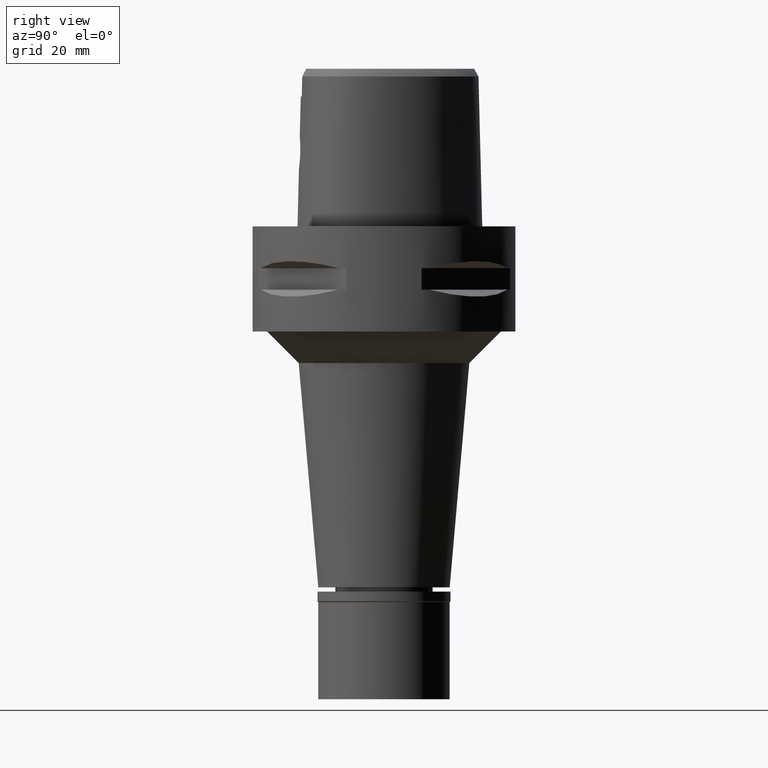
[diagram: clean part render]
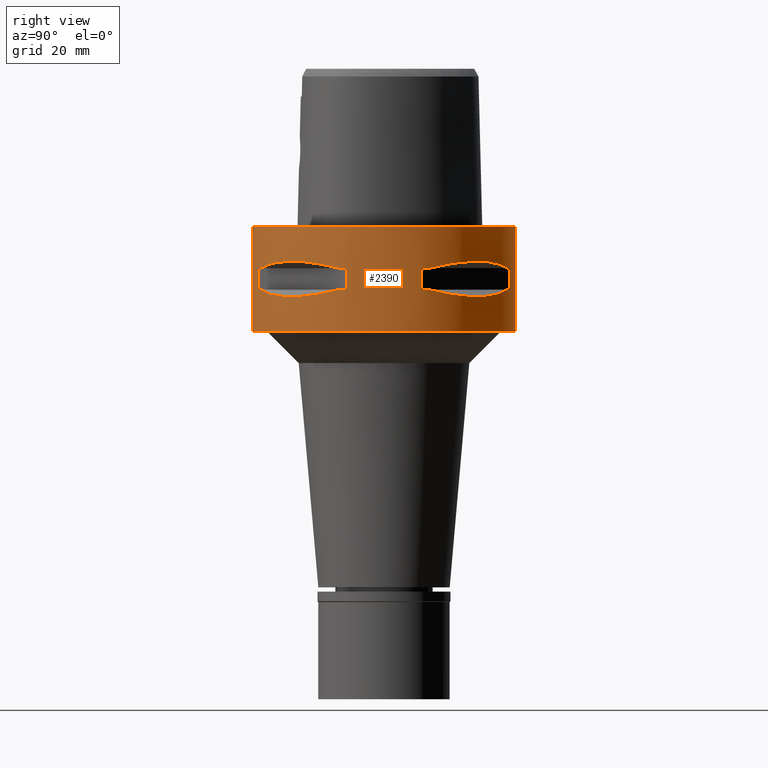
[diagram: same view with one face highlighted and labeled with its STEP entity id]
A machine part, right view. The second image highlights one B-rep face of the part: STEP entity #2390.
In plain terms, the highlighted cylindrical surface (partial cylindrical patch) has radius 25 mm, axis along (0, 0, -1).
Its self-contained STEP definition (entity closure, byte-faithful):
#15 = CARTESIAN_POINT ( 'NONE',  ( 20.88268233906207172, -13.74471461761599400, -13.08031795579753087 ) ) ;
#35 = CARTESIAN_POINT ( 'NONE',  ( 23.45715880140000209, 8.646484890756999775, -12.05000000000000071 ) ) ;
#38 = CARTESIAN_POINT ( 'NONE',  ( 13.53433973752400554, -21.01958685664054372, -13.05032380590162333 ) ) ;
#52 = DIRECTION ( 'NONE',  ( 0.0000000000000000000, 0.0000000000000000000, 1.000000000000000000 ) ) ;
#64 = CIRCLE ( 'NONE', #3499, 24.99999999999999645 ) ;
#67 = CARTESIAN_POINT ( 'NONE',  ( 9.515641234297431694, -23.13678124605150188, -12.27403800212630536 ) ) ;
#69 = CARTESIAN_POINT ( 'NONE',  ( 23.95277699797999915, 7.159921374230999724, -12.05000000000000071 ) ) ;
#72 = DIRECTION ( 'NONE',  ( 0.0000000000000000000, 0.0000000000000000000, -1.000000000000000000 ) ) ;
#81 = ORIENTED_EDGE ( 'NONE', *, *, #4947, .F. ) ;
#107 = CARTESIAN_POINT ( 'NONE',  ( 23.95277699797999915, 7.159921374230999724, -7.950000000000000178 ) ) ;
#120 = LINE ( 'NONE', #150, #617 ) ;
#124 = ORIENTED_EDGE ( 'NONE', *, *, #666, .F. ) ;
#143 = CARTESIAN_POINT ( 'NONE',  ( 7.159921374235000080, -23.95277699797999915, -7.950000000000000178 ) ) ;
#150 = CARTESIAN_POINT ( 'NONE',  ( 7.159921374230999724, 23.95277699797999915, -12.05000000000000071 ) ) ;
#206 = DIRECTION ( 'NONE',  ( 0.2863968549694120291, -0.9581110799190402094, 0.0000000000000000000 ) ) ;
#207 = CARTESIAN_POINT ( 'NONE',  ( 22.58788056560981516, 10.78455809748034788, -12.56798337783676267 ) ) ;
#227 = EDGE_LOOP ( 'NONE', ( #973, #2279, #4503, #81 ) ) ;
#236 = CARTESIAN_POINT ( 'NONE',  ( 21.20561591939435786, 13.24197703503935486, -13.00691327926270446 ) ) ;
#269 = CARTESIAN_POINT ( 'NONE',  ( 20.06074199769976829, -15.02698525043415145, -6.733118915137212390 ) ) ;
#285 = CARTESIAN_POINT ( 'NONE',  ( 21.82791133047632215, 12.20403021319857828, -12.83722430139150994 ) ) ;
#317 = VECTOR ( 'NONE', #2649, 1000.000000000000000 ) ;
#331 = ORIENTED_EDGE ( 'NONE', *, *, #4211, .T. ) ;
#335 = CARTESIAN_POINT ( 'NONE',  ( 8.646484890751999330, 23.45715880140000209, -12.05000000000000071 ) ) ;
#357 = CARTESIAN_POINT ( 'NONE',  ( 0.0000000000000000000, 1.275959500031999927E-14, 4.190000000000000391 ) ) ;
#363 = CARTESIAN_POINT ( 'NONE',  ( 16.43106916202457057, -18.92421359264944769, -13.37747608848233760 ) ) ;
#394 = LINE ( 'NONE', #4631, #317 ) ;
#412 = CARTESIAN_POINT ( 'NONE',  ( 10.78455809745186755, -22.58788056562029922, -12.56798337782941566 ) ) ;
#453 = CIRCLE ( 'NONE', #1577, 24.99999999999999645 ) ;
#478 = AXIS2_PLACEMENT_3D ( 'NONE', #1681, #4707, #2777 ) ;
#479 = EDGE_CURVE ( 'NONE', #2343, #3742, #697, .T. ) ;
#511 = VERTEX_POINT ( 'NONE', #3043 ) ;
#522 = CARTESIAN_POINT ( 'NONE',  ( 15.02698525050126044, 20.06074199764951871, -6.733118915116992120 ) ) ;
#554 = LINE ( 'NONE', #107, #1666 ) ;
#603 = CIRCLE ( 'NONE', #4135, 25.00000000000001066 ) ;
#608 = CARTESIAN_POINT ( 'NONE',  ( 21.01958685664017068, 13.53433973752500918, -13.05032380590188446 ) ) ;
#617 = VECTOR ( 'NONE', #1684, 1000.000000000000000 ) ;
#638 = CARTESIAN_POINT ( 'NONE',  ( 13.90573822668135406, 20.77616787493428774, -13.10257122103294058 ) ) ;
#648 = CARTESIAN_POINT ( 'NONE',  ( 8.646484890751999330, -23.45715880140000209, -7.949999999998999201 ) ) ;
#666 = EDGE_CURVE ( 'NONE', #2653, #2174, #120, .T. ) ;
#683 = CIRCLE ( 'NONE', #3889, 24.99999999999999645 ) ;
#687 = DIRECTION ( 'NONE',  ( 0.9382863520558295534, -0.3458593956303108730, 0.0000000000000000000 ) ) ;
#691 = CIRCLE ( 'NONE', #4542, 25.00000000000001066 ) ;
#697 = CIRCLE ( 'NONE', #2762, 25.00000000000000000 ) ;
#711 = FACE_BOUND ( 'NONE', #2868, .T. ) ;
#735 = CARTESIAN_POINT ( 'NONE',  ( 15.06560254765663132, -20.02826730455345583, -13.27075471794622885 ) ) ;
#743 = ORIENTED_EDGE ( 'NONE', *, *, #4894, .T. ) ;
#761 = CARTESIAN_POINT ( 'NONE',  ( 19.18226349639588690, -16.07509500018327131, -13.33749867752016449 ) ) ;
#817 = DIRECTION ( 'NONE',  ( 0.0000000000000000000, 0.0000000000000000000, 1.000000000000000000 ) ) ;
#864 = CARTESIAN_POINT ( 'NONE',  ( 0.0000000000000000000, 1.275959500031999927E-14, -12.05000000000000071 ) ) ;
#918 = CARTESIAN_POINT ( 'NONE',  ( 8.646484890751999330, 23.45715880140000209, -7.949999999998999201 ) ) ;
#924 = EDGE_LOOP ( 'NONE', ( #331, #124, #3426, #1458, #4787, #2404, #2111, #3255 ) ) ;
#973 = ORIENTED_EDGE ( 'NONE', *, *, #479, .T. ) ;
#981 = CARTESIAN_POINT ( 'NONE',  ( 21.41803043591995959, 12.89853354823032738, -12.95342092614324869 ) ) ;
#1001 = VERTEX_POINT ( 'NONE', #4134 ) ;
#1039 = CARTESIAN_POINT ( 'NONE',  ( 13.60713573003037880, 20.97251445226597966, -13.06082541678103404 ) ) ;
#1040 = CARTESIAN_POINT ( 'NONE',  ( 23.95277699797999915, -7.159921374230999724, -12.05000000000000071 ) ) ;
#1048 = CARTESIAN_POINT ( 'NONE',  ( 23.45715880140000209, -8.646484890751999330, -7.949999999998999201 ) ) ;
#1051 = ORIENTED_EDGE ( 'NONE', *, *, #3708, .T. ) ;
#1072 = CARTESIAN_POINT ( 'NONE',  ( 0.0000000000000000000, 25.00000000000000000, 0.0000000000000000000 ) ) ;
#1086 = EDGE_CURVE ( 'NONE', #2666, #3936, #4172, .T. ) ;
#1112 = DIRECTION ( 'NONE',  ( 0.9581110799190402094, -0.2863968549694120291, 0.0000000000000000000 ) ) ;
#1114 = CYLINDRICAL_SURFACE ( 'NONE', #3753, 25.00000000000000000 ) ;
#1122 = CARTESIAN_POINT ( 'NONE',  ( 20.97251445226583755, -13.60713573003076071, -13.06082541678112641 ) ) ;
#1126 = CARTESIAN_POINT ( 'NONE',  ( 23.45715880140000209, 8.646484890751999330, -7.949999999998999201 ) ) ;
#1172 = CARTESIAN_POINT ( 'NONE',  ( 13.48572973711064193, -21.05082155772163688, -13.04323036965292637 ) ) ;
#1180 = AXIS2_PLACEMENT_3D ( 'NONE', #4410, #2902, #687 ) ;
#1181 = EDGE_CURVE ( 'NONE', #511, #3771, #2145, .T. ) ;
#1182 = EDGE_CURVE ( 'NONE', #2206, #3771, #2671, .T. ) ;
#1203 = CARTESIAN_POINT ( 'NONE',  ( 0.0000000000000000000, 1.275959500031999927E-14, -7.950000000000000178 ) ) ;
#1281 = VERTEX_POINT ( 'NONE', #3282 ) ;
#1287 = B_SPLINE_CURVE_WITH_KNOTS ( 'NONE', 3,
 ( #2835, #1377, #1661, #2391, #3960, #2134, #522, #4343, #2863, #918 ),
 .UNSPECIFIED., .F., .F.,
 ( 4, 2, 2, 2, 4 ),
 ( 0.0000000000000000000, 0.2500000000000000000, 0.5000000000000000000, 0.7500000000000000000, 1.000000000000000000 ),
 .UNSPECIFIED. ) ;
#1377 = CARTESIAN_POINT ( 'NONE',  ( 22.82438450745431524, 10.36314631860615876, -7.507504930525397135 ) ) ;
#1412 = VECTOR ( 'NONE', #4904, 1000.000000000000000 ) ;
#1428 = CARTESIAN_POINT ( 'NONE',  ( 22.82437128824116712, -10.36318218117755841, -7.507495686413086844 ) ) ;
#1446 = CARTESIAN_POINT ( 'NONE',  ( 10.38516041958474645, 22.81626994451295332, -12.49816953211793802 ) ) ;
#1447 = DIRECTION ( 'NONE',  ( 0.0000000000000000000, 0.0000000000000000000, 1.000000000000000000 ) ) ;
#1458 = ORIENTED_EDGE ( 'NONE', *, *, #4590, .F. ) ;
#1492 = EDGE_CURVE ( 'NONE', #1281, #2958, #554, .T. ) ;
#1551 = CARTESIAN_POINT ( 'NONE',  ( 20.77616787493668937, -13.90573822667970916, -13.10257122103325145 ) ) ;
#1569 = DIRECTION ( 'NONE',  ( 0.0000000000000000000, -1.000000000000000000, 0.0000000000000000000 ) ) ;
#1577 = AXIS2_PLACEMENT_3D ( 'NONE', #4150, #4551, #1112 ) ;
#1661 = CARTESIAN_POINT ( 'NONE',  ( 22.00754773658079344, 11.99631184311074428, -7.175632472892017333 ) ) ;
#1666 = VECTOR ( 'NONE', #3104, 1000.000000000000000 ) ;
#1681 = CARTESIAN_POINT ( 'NONE',  ( 0.0000000000000000000, 1.275959500031999927E-14, -12.05000000000000071 ) ) ;
#1684 = DIRECTION ( 'NONE',  ( 0.0000000000000000000, 0.0000000000000000000, 1.000000000000000000 ) ) ;
#1775 = CARTESIAN_POINT ( 'NONE',  ( 0.0000000000000000000, 1.275959500031999927E-14, -7.950000000000000178 ) ) ;
#1799 = CARTESIAN_POINT ( 'NONE',  ( 21.05082155772089436, 13.48572973711263323, -13.04323036965343618 ) ) ;
#1806 = LINE ( 'NONE', #1072, #1412 ) ;
#1823 = CARTESIAN_POINT ( 'NONE',  ( 12.03062603423778754, 21.99328990739221013, -12.83394786307672675 ) ) ;
#1926 = CARTESIAN_POINT ( 'NONE',  ( 20.11654071402723432, -14.85488513038430192, -13.22076716108491290 ) ) ;
#1931 = DIRECTION ( 'NONE',  ( 0.0000000000000000000, 1.000000000000000000, 0.0000000000000000000 ) ) ;
#1941 = CARTESIAN_POINT ( 'NONE',  ( 8.646484890751999330, 23.45715880140000209, -12.05000000000000071 ) ) ;
#2016 = EDGE_CURVE ( 'NONE', #1281, #4282, #64, .T. ) ;
#2111 = ORIENTED_EDGE ( 'NONE', *, *, #2016, .T. ) ;
#2123 = DIRECTION ( 'NONE',  ( 0.3458593956303108730, -0.9382863520558295534, 0.0000000000000000000 ) ) ;
#2134 = CARTESIAN_POINT ( 'NONE',  ( 16.42437865151178045, 18.93096040781560063, -6.622496303226938608 ) ) ;
#2136 = VERTEX_POINT ( 'NONE', #143 ) ;
#2144 = CARTESIAN_POINT ( 'NONE',  ( 21.00321793043583796, 13.55971422200765630, -13.05400030967367897 ) ) ;
#2145 = LINE ( 'NONE', #1040, #3571 ) ;
#2154 = CARTESIAN_POINT ( 'NONE',  ( 11.99631184318432275, -22.00754773654066199, -7.175632472871786405 ) ) ;
#2169 = CARTESIAN_POINT ( 'NONE',  ( 13.74471461761685198, 20.88268233906084248, -13.08031795579737455 ) ) ;
#2174 = VERTEX_POINT ( 'NONE', #3205 ) ;
#2206 = VERTEX_POINT ( 'NONE', #2430 ) ;
#2265 = CARTESIAN_POINT ( 'NONE',  ( 23.45715880140000209, -8.646484890751999330, -12.05000000000000071 ) ) ;
#2279 = ORIENTED_EDGE ( 'NONE', *, *, #4502, .T. ) ;
#2289 = CARTESIAN_POINT ( 'NONE',  ( 20.95817024473895174, -13.62920640916654591, -13.06397973560678061 ) ) ;
#2301 = VERTEX_POINT ( 'NONE', #3905 ) ;
#2341 = DIRECTION ( 'NONE',  ( 0.3458593956303108730, 0.9382863520558295534, 0.0000000000000000000 ) ) ;
#2343 = VERTEX_POINT ( 'NONE', #3800 ) ;
#2382 = DIRECTION ( 'NONE',  ( 0.0000000000000000000, 0.0000000000000000000, -1.000000000000000000 ) ) ;
#2390 = ADVANCED_FACE ( 'NONE', ( #3434, #711, #2983 ), #1114, .T. ) ;
#2391 = CARTESIAN_POINT ( 'NONE',  ( 20.06077645874710313, 15.02693924547574866, -6.733132781305681824 ) ) ;
#2404 = ORIENTED_EDGE ( 'NONE', *, *, #1492, .F. ) ;
#2430 = CARTESIAN_POINT ( 'NONE',  ( 23.45715880140000209, -8.646484890751999330, -7.949999999998999201 ) ) ;
#2440 = CARTESIAN_POINT ( 'NONE',  ( 23.45715880140000209, -8.646484890751999330, -12.05000000000000071 ) ) ;
#2451 = VERTEX_POINT ( 'NONE', #335 ) ;
#2474 = ORIENTED_EDGE ( 'NONE', *, *, #1182, .T. ) ;
#2510 = CARTESIAN_POINT ( 'NONE',  ( 16.42437865147233111, -18.93096040785503220, -6.622505547239580181 ) ) ;
#2511 = EDGE_CURVE ( 'NONE', #1001, #2301, #4398, .T. ) ;
#2549 = CARTESIAN_POINT ( 'NONE',  ( 7.159921374230999724, -23.95277699797999915, -12.05000000000000071 ) ) ;
#2573 = ORIENTED_EDGE ( 'NONE', *, *, #4810, .T. ) ;
#2617 = AXIS2_PLACEMENT_3D ( 'NONE', #864, #2382, #4284 ) ;
#2647 = CARTESIAN_POINT ( 'NONE',  ( 13.55971422200820520, -21.00321793043535479, -13.05400030967370206 ) ) ;
#2649 = DIRECTION ( 'NONE',  ( 0.0000000000000000000, 0.0000000000000000000, -1.000000000000000000 ) ) ;
#2653 = VERTEX_POINT ( 'NONE', #3247 ) ;
#2666 = VERTEX_POINT ( 'NONE', #2915 ) ;
#2671 = CIRCLE ( 'NONE', #1180, 25.00000000000001066 ) ;
#2673 = EDGE_CURVE ( 'NONE', #2895, #2206, #4047, .T. ) ;
#2711 = CARTESIAN_POINT ( 'NONE',  ( 0.0000000000000000000, 1.275959500031999927E-14, -7.950000000000000178 ) ) ;
#2742 = CARTESIAN_POINT ( 'NONE',  ( 0.0000000000000000000, 1.275959500031999927E-14, -20.00000000000000000 ) ) ;
#2762 = AXIS2_PLACEMENT_3D ( 'NONE', #4635, #72, #1931 ) ;
#2775 = CIRCLE ( 'NONE', #478, 24.99999999999999645 ) ;
#2777 = DIRECTION ( 'NONE',  ( 0.2863968549694120291, 0.9581110799190402094, 0.0000000000000000000 ) ) ;
#2835 = CARTESIAN_POINT ( 'NONE',  ( 23.45715880140000209, 8.646484890751999330, -7.949999999998999201 ) ) ;
#2861 = EDGE_CURVE ( 'NONE', #2136, #4570, #394, .T. ) ;
#2863 = CARTESIAN_POINT ( 'NONE',  ( 10.36318218122983481, 22.82437128822192207, -7.507495686399606960 ) ) ;
#2868 = EDGE_LOOP ( 'NONE', ( #2474, #3721, #2573, #4162, #743, #3731, #1051, #4432 ) ) ;
#2887 = CARTESIAN_POINT ( 'NONE',  ( 18.93096040785499667, -16.42437865147237730, -6.622496303240421156 ) ) ;
#2895 = VERTEX_POINT ( 'NONE', #3784 ) ;
#2902 = DIRECTION ( 'NONE',  ( 0.0000000000000000000, 0.0000000000000000000, 1.000000000000000000 ) ) ;
#2915 = CARTESIAN_POINT ( 'NONE',  ( 8.646484890756999775, -23.45715880140000209, -12.05000000000000071 ) ) ;
#2933 = CARTESIAN_POINT ( 'NONE',  ( 16.07509500019029502, 19.18226349638565509, -13.33749867751885532 ) ) ;
#2958 = VERTEX_POINT ( 'NONE', #69 ) ;
#2960 = CARTESIAN_POINT ( 'NONE',  ( 0.0000000000000000000, -25.00000000000000000, 0.0000000000000000000 ) ) ;
#2983 = FACE_BOUND ( 'NONE', #924, .T. ) ;
#3012 = CARTESIAN_POINT ( 'NONE',  ( 12.20403021317722292, -21.82791133048418786, -12.83722430138600323 ) ) ;
#3022 = B_SPLINE_CURVE_WITH_KNOTS ( 'NONE', 3,
 ( #3643, #3723, #207, #285, #981, #236, #4052, #1799, #608, #2144, #4849, #3333, #3281, #2933, #3673, #4078, #638, #2169, #3698, #4486, #1039, #1823, #1446, #1941 ),
 .UNSPECIFIED., .F., .F.,
 ( 4, 1, 1, 1, 1, 1, 2, 2, 2, 1, 1, 1, 1, 1, 2, 2, 4 ),
 ( 0.0000000000000000000, 0.1249999999999982236, 0.1874999999999974465, 0.2187499999999970302, 0.2343749999999969469, 0.2421874999999968081, 0.2460937499999968359, 0.2499999999999968914, 0.4999999999999973355, 0.6249999999999973355, 0.6874999999999976685, 0.7187499999999978906, 0.7343749999999980016, 0.7421874999999980016, 0.7460937499999978906, 0.7499999999999978906, 1.000000000000000000 ),
 .UNSPECIFIED. ) ;
#3043 = CARTESIAN_POINT ( 'NONE',  ( 23.95277699797999915, -7.159921374235000080, -12.05000000000000071 ) ) ;
#3059 = CARTESIAN_POINT ( 'NONE',  ( 21.99328990740119139, -12.03062603421341770, -12.83394786307044022 ) ) ;
#3095 = EDGE_CURVE ( 'NONE', #2653, #2451, #2775, .T. ) ;
#3104 = DIRECTION ( 'NONE',  ( 0.0000000000000000000, 0.0000000000000000000, -1.000000000000000000 ) ) ;
#3205 = CARTESIAN_POINT ( 'NONE',  ( 7.159921374230999724, 23.95277699797999915, -7.950000000000000178 ) ) ;
#3215 = EDGE_CURVE ( 'NONE', #3614, #2958, #4000, .T. ) ;
#3247 = CARTESIAN_POINT ( 'NONE',  ( 7.159921374235000080, 23.95277699797999915, -12.05000000000000071 ) ) ;
#3255 = ORIENTED_EDGE ( 'NONE', *, *, #3840, .T. ) ;
#3280 = DIRECTION ( 'NONE',  ( 0.0000000000000000000, 0.0000000000000000000, 1.000000000000000000 ) ) ;
#3281 = CARTESIAN_POINT ( 'NONE',  ( 17.05439749817592343, 18.30096971347850499, -13.37751056790020598 ) ) ;
#3282 = CARTESIAN_POINT ( 'NONE',  ( 23.95277699797999915, 7.159921374235000080, -7.950000000000000178 ) ) ;
#3319 = CARTESIAN_POINT ( 'NONE',  ( 10.36314631865839964, -22.82438450743505598, -7.507504930511911923 ) ) ;
#3333 = CARTESIAN_POINT ( 'NONE',  ( 18.92421359264142211, 16.43106916203626611, -13.37747608848383329 ) ) ;
#3416 = CARTESIAN_POINT ( 'NONE',  ( 8.646484890756999775, -23.45715880140000209, -12.05000000000000071 ) ) ;
#3426 = ORIENTED_EDGE ( 'NONE', *, *, #3095, .T. ) ;
#3434 = FACE_OUTER_BOUND ( 'NONE', #227, .T. ) ;
#3499 = AXIS2_PLACEMENT_3D ( 'NONE', #2711, #52, #3863 ) ;
#3571 = VECTOR ( 'NONE', #1447, 1000.000000000000000 ) ;
#3614 = VERTEX_POINT ( 'NONE', #35 ) ;
#3643 = CARTESIAN_POINT ( 'NONE',  ( 23.45715880140000209, 8.646484890756999775, -12.05000000000000071 ) ) ;
#3673 = CARTESIAN_POINT ( 'NONE',  ( 14.85488513038957592, 20.11654071401955335, -13.22076716108393413 ) ) ;
#3698 = CARTESIAN_POINT ( 'NONE',  ( 13.67544437571146609, 20.92801700160250533, -13.07054629644086674 ) ) ;
#3708 = EDGE_CURVE ( 'NONE', #2136, #2895, #683, .T. ) ;
#3709 = CARTESIAN_POINT ( 'NONE',  ( 15.02693924554282034, -20.06077645869683579, -6.733132781285451784 ) ) ;
#3721 = ORIENTED_EDGE ( 'NONE', *, *, #1181, .F. ) ;
#3723 = CARTESIAN_POINT ( 'NONE',  ( 23.13678124604550845, 9.515641234313701347, -12.27403800213050111 ) ) ;
#3731 = ORIENTED_EDGE ( 'NONE', *, *, #2861, .F. ) ;
#3742 = VERTEX_POINT ( 'NONE', #4773 ) ;
#3753 = AXIS2_PLACEMENT_3D ( 'NONE', #357, #4153, #4555 ) ;
#3771 = VERTEX_POINT ( 'NONE', #4690 ) ;
#3784 = CARTESIAN_POINT ( 'NONE',  ( 8.646484890751999330, -23.45715880140000209, -7.949999999998999201 ) ) ;
#3786 = CARTESIAN_POINT ( 'NONE',  ( 8.646484890751999330, 23.45715880140000209, -7.949999999998999201 ) ) ;
#3800 = CARTESIAN_POINT ( 'NONE',  ( 0.0000000000000000000, 25.00000000000000000, 0.0000000000000000000 ) ) ;
#3832 = CARTESIAN_POINT ( 'NONE',  ( 22.81626994452193458, -10.38516041956038727, -12.49816953211166037 ) ) ;
#3840 = EDGE_CURVE ( 'NONE', #4282, #4073, #1287, .T. ) ;
#3853 = CARTESIAN_POINT ( 'NONE',  ( 18.30096971348435630, -17.05439749817190176, -13.37751056790094850 ) ) ;
#3863 = DIRECTION ( 'NONE',  ( 0.9581110799190402094, 0.2863968549694120291, 0.0000000000000000000 ) ) ;
#3889 = AXIS2_PLACEMENT_3D ( 'NONE', #1775, #3280, #206 ) ;
#3905 = CARTESIAN_POINT ( 'NONE',  ( 0.0000000000000000000, 25.00000000000000000, -20.00000000000000000 ) ) ;
#3915 = AXIS2_PLACEMENT_3D ( 'NONE', #2742, #4274, #1569 ) ;
#3936 = VERTEX_POINT ( 'NONE', #2440 ) ;
#3960 = CARTESIAN_POINT ( 'NONE',  ( 18.93096040781554024, 16.42437865151185505, -6.622505547253060953 ) ) ;
#4000 = CIRCLE ( 'NONE', #2617, 25.00000000000001066 ) ;
#4047 = B_SPLINE_CURVE_WITH_KNOTS ( 'NONE', 3,
 ( #648, #3319, #2154, #3709, #2510, #2887, #269, #4860, #1428, #1048 ),
 .UNSPECIFIED., .F., .F.,
 ( 4, 2, 2, 2, 4 ),
 ( 0.0000000000000000000, 0.2500000000000000000, 0.5000000000000000000, 0.7500000000000000000, 1.000000000000000000 ),
 .UNSPECIFIED. ) ;
#4052 = CARTESIAN_POINT ( 'NONE',  ( 21.09754014381971388, 13.41274673326716282, -13.03250796600833716 ) ) ;
#4073 = VERTEX_POINT ( 'NONE', #3786 ) ;
#4078 = CARTESIAN_POINT ( 'NONE',  ( 14.22535762328483067, 20.56020460723039278, -13.14488865845230592 ) ) ;
#4084 = DIRECTION ( 'NONE',  ( 0.0000000000000000000, 0.0000000000000000000, -1.000000000000000000 ) ) ;
#4131 = CARTESIAN_POINT ( 'NONE',  ( 0.0000000000000000000, 1.275959500031999927E-14, -12.05000000000000071 ) ) ;
#4134 = CARTESIAN_POINT ( 'NONE',  ( 0.0000000000000000000, -25.00000000000000000, -20.00000000000000000 ) ) ;
#4135 = AXIS2_PLACEMENT_3D ( 'NONE', #1203, #817, #2341 ) ;
#4150 = CARTESIAN_POINT ( 'NONE',  ( 0.0000000000000000000, 1.275959500031999927E-14, -12.05000000000000071 ) ) ;
#4153 = DIRECTION ( 'NONE',  ( 0.0000000000000000000, 0.0000000000000000000, -1.000000000000000000 ) ) ;
#4162 = ORIENTED_EDGE ( 'NONE', *, *, #1086, .F. ) ;
#4172 = B_SPLINE_CURVE_WITH_KNOTS ( 'NONE', 3,
 ( #3416, #67, #412, #3012, #4561, #4182, #4655, #1172, #38, #2647, #735, #363, #3853, #761, #1926, #4231, #1551, #15, #4201, #2289, #1122, #3059, #3832, #2265 ),
 .UNSPECIFIED., .F., .F.,
 ( 4, 1, 1, 1, 1, 1, 2, 2, 2, 1, 1, 1, 1, 1, 2, 2, 4 ),
 ( 0.0000000000000000000, 0.1250000000000068834, 0.1875000000000101308, 0.2187500000000117406, 0.2343750000000125733, 0.2421875000000129341, 0.2460937500000130174, 0.2500000000000131006, 0.5000000000000111022, 0.6250000000000101030, 0.6875000000000099920, 0.7187500000000099920, 0.7343750000000099920, 0.7421875000000098810, 0.7460937500000098810, 0.7500000000000098810, 1.000000000000000000 ),
 .UNSPECIFIED. ) ;
#4182 = CARTESIAN_POINT ( 'NONE',  ( 13.24197703503267931, -21.20561591939681634, -13.00691327926098495 ) ) ;
#4201 = CARTESIAN_POINT ( 'NONE',  ( 20.92801700160322298, -13.67544437571097404, -13.07054629644096444 ) ) ;
#4211 = EDGE_CURVE ( 'NONE', #4073, #2174, #603, .T. ) ;
#4231 = CARTESIAN_POINT ( 'NONE',  ( 20.56020460723486565, -14.22535762328174691, -13.14488865845287080 ) ) ;
#4274 = DIRECTION ( 'NONE',  ( 0.0000000000000000000, 0.0000000000000000000, 1.000000000000000000 ) ) ;
#4282 = VERTEX_POINT ( 'NONE', #1126 ) ;
#4284 = DIRECTION ( 'NONE',  ( 0.9382863520558295534, 0.3458593956303108730, 0.0000000000000000000 ) ) ;
#4343 = CARTESIAN_POINT ( 'NONE',  ( 11.99636231264435615, 22.00752022556853404, -7.175618606703325852 ) ) ;
#4398 = CIRCLE ( 'NONE', #3915, 25.00000000000000000 ) ;
#4410 = CARTESIAN_POINT ( 'NONE',  ( 0.0000000000000000000, 1.275959500031999927E-14, -7.950000000000000178 ) ) ;
#4432 = ORIENTED_EDGE ( 'NONE', *, *, #2673, .T. ) ;
#4486 = CARTESIAN_POINT ( 'NONE',  ( 13.62920640916679993, 20.95817024473859291, -13.06397973560673265 ) ) ;
#4502 = EDGE_CURVE ( 'NONE', #3742, #1001, #4899, .T. ) ;
#4503 = ORIENTED_EDGE ( 'NONE', *, *, #2511, .T. ) ;
#4542 = AXIS2_PLACEMENT_3D ( 'NONE', #4131, #4084, #2123 ) ;
#4551 = DIRECTION ( 'NONE',  ( 0.0000000000000000000, 0.0000000000000000000, -1.000000000000000000 ) ) ;
#4555 = DIRECTION ( 'NONE',  ( 0.0000000000000000000, -1.000000000000000000, 0.0000000000000000000 ) ) ;
#4561 = CARTESIAN_POINT ( 'NONE',  ( 12.89853354821786624, -21.41803043592453548, -12.95342092614003349 ) ) ;
#4570 = VERTEX_POINT ( 'NONE', #2549 ) ;
#4590 = EDGE_CURVE ( 'NONE', #3614, #2451, #3022, .T. ) ;
#4631 = CARTESIAN_POINT ( 'NONE',  ( 7.159921374230999724, -23.95277699797999915, -7.950000000000000178 ) ) ;
#4635 = CARTESIAN_POINT ( 'NONE',  ( 0.0000000000000000000, 1.275959500031999927E-14, 0.0000000000000000000 ) ) ;
#4655 = CARTESIAN_POINT ( 'NONE',  ( 13.41274673326371314, -21.09754014382099285, -13.03250796600744721 ) ) ;
#4690 = CARTESIAN_POINT ( 'NONE',  ( 23.95277699797999915, -7.159921374230999724, -7.950000000000000178 ) ) ;
#4692 = VECTOR ( 'NONE', #4826, 1000.000000000000000 ) ;
#4707 = DIRECTION ( 'NONE',  ( 0.0000000000000000000, 0.0000000000000000000, -1.000000000000000000 ) ) ;
#4773 = CARTESIAN_POINT ( 'NONE',  ( 0.0000000000000000000, -25.00000000000000000, 0.0000000000000000000 ) ) ;
#4787 = ORIENTED_EDGE ( 'NONE', *, *, #3215, .T. ) ;
#4810 = EDGE_CURVE ( 'NONE', #511, #3936, #453, .T. ) ;
#4826 = DIRECTION ( 'NONE',  ( 0.0000000000000000000, 0.0000000000000000000, -1.000000000000000000 ) ) ;
#4849 = CARTESIAN_POINT ( 'NONE',  ( 20.02826730452214932, 15.06560254769159712, -13.27075471794772277 ) ) ;
#4860 = CARTESIAN_POINT ( 'NONE',  ( 22.00752022560862642, -11.99636231257075991, -7.175618606723545234 ) ) ;
#4894 = EDGE_CURVE ( 'NONE', #2666, #4570, #691, .T. ) ;
#4899 = LINE ( 'NONE', #2960, #4692 ) ;
#4904 = DIRECTION ( 'NONE',  ( 0.0000000000000000000, 0.0000000000000000000, -1.000000000000000000 ) ) ;
#4947 = EDGE_CURVE ( 'NONE', #2343, #2301, #1806, .T. ) ;